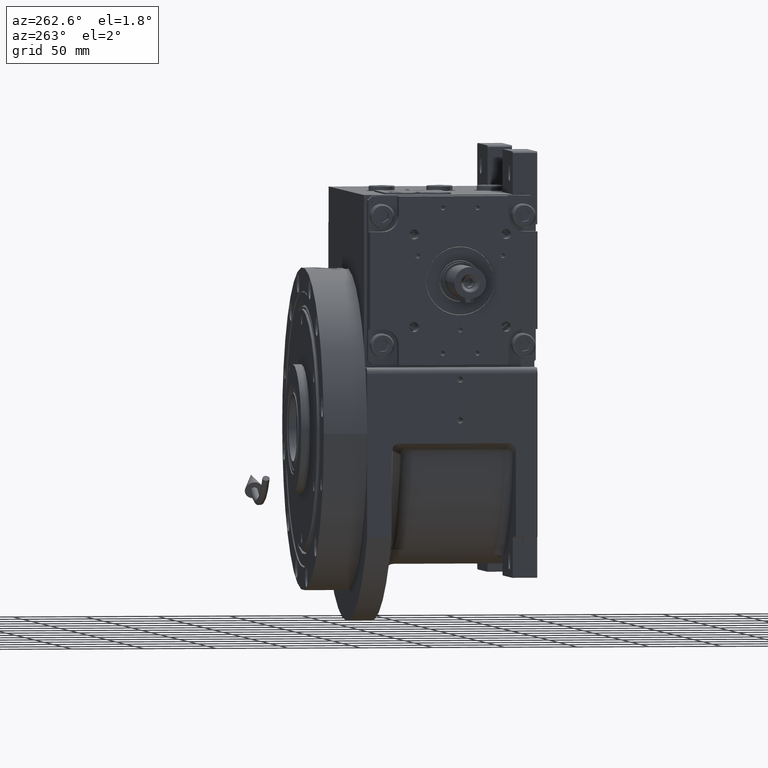
[diagram: clean part render]
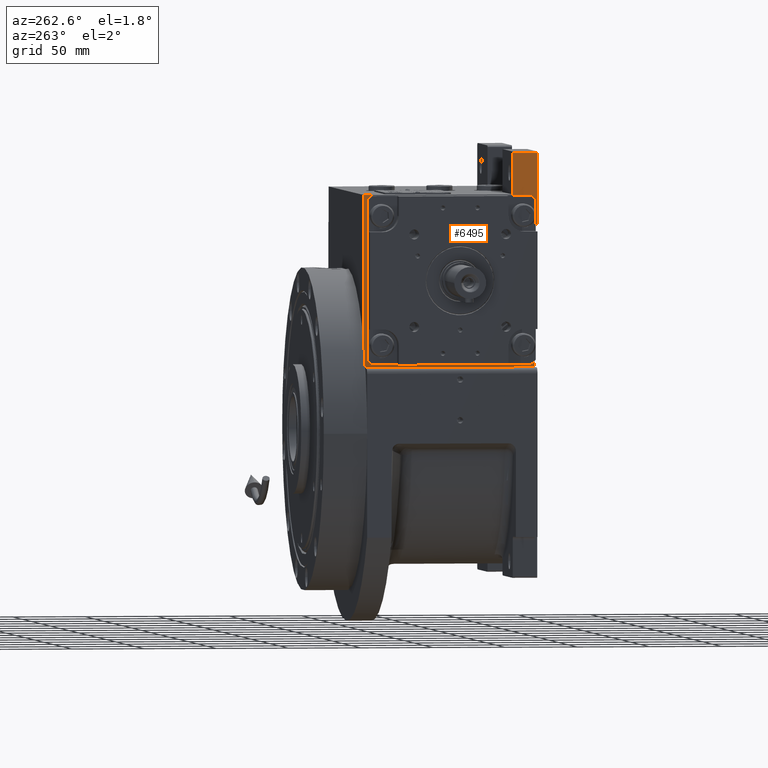
[diagram: same view with one face highlighted and labeled with its STEP entity id]
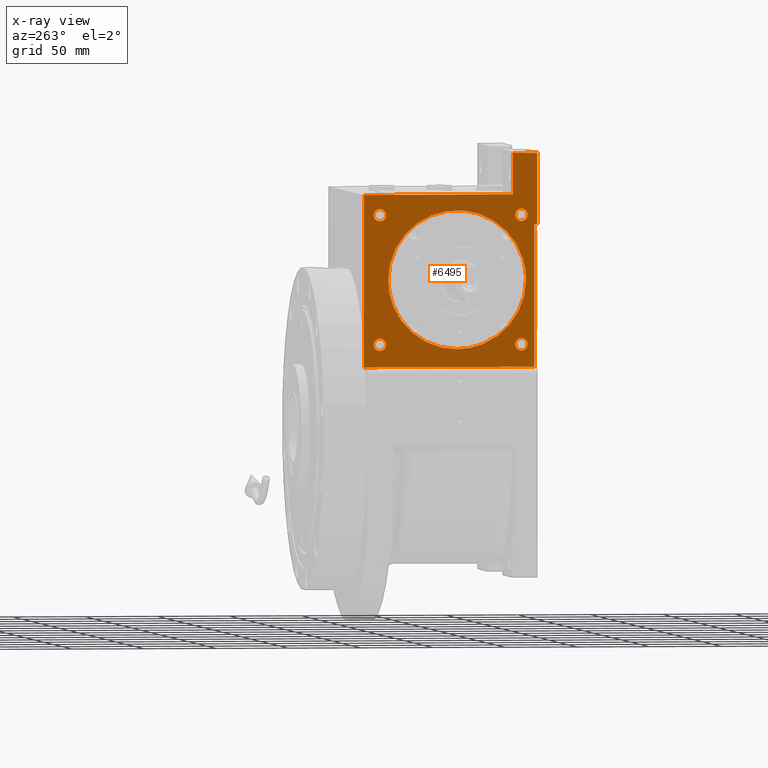
[diagram: x-ray of the same camera — body ghosted, the highlighted face saturated]
A machine part, auxiliary view. The second image highlights one B-rep face of the part: STEP entity #6495.
The next image is the same camera in x-ray: the body ghosted, the highlighted face saturated — about 0% of this face is hidden behind the body in this view.
In plain terms, the highlighted planar face has unit normal (-1, 0, 0).
Its self-contained STEP definition (entity closure, byte-faithful):
#1208 = CARTESIAN_POINT ( 'NONE',  ( -94.50000000000000000, 64.50000000000000000, 45.00000000000000000 ) ) ;
#1776 = ORIENTED_EDGE ( 'NONE', *, *, #22704, .F. ) ;
#1873 = DIRECTION ( 'NONE',  ( 1.000000000000000000, 0.000000000000000000, 0.000000000000000000 ) ) ;
#2412 = FACE_BOUND ( 'NONE', #56578, .T. ) ;
#2658 = CARTESIAN_POINT ( 'NONE',  ( -94.50000000000000000, -44.50000000000000000, 60.50000000000000000 ) ) ;
#2774 = FACE_BOUND ( 'NONE', #51881, .T. ) ;
#2839 = CARTESIAN_POINT ( 'NONE',  ( -94.50000000000000000, -48.75000000000000000, 149.5000000000000000 ) ) ;
#3049 = CARTESIAN_POINT ( 'NONE',  ( -94.50000000000000000, -53.50000000000000000, 143.0000000000000000 ) ) ;
#3229 = CARTESIAN_POINT ( 'NONE',  ( -94.50000000000001421, 46.88961175932070091, 113.9273655160291838 ) ) ;
#3276 = CARTESIAN_POINT ( 'NONE',  ( -94.50000000000000000, -40.25000000000000000, 149.5000000000000000 ) ) ;
#3290 = CARTESIAN_POINT ( 'NONE',  ( -94.50002902716749986, 47.73200051477400763, 104.9999994569417936 ) ) ;
#3461 = VERTEX_POINT ( 'NONE', #16632 ) ;
#3719 = CARTESIAN_POINT ( 'NONE',  ( -94.50000000000001421, 12.38588816551537697, 58.79663575734043945 ) ) ;
#3915 = CARTESIAN_POINT ( 'NONE',  ( -94.50000000000002842, 46.96080401060652321, 113.5451053246913347 ) ) ;
#4244 = CARTESIAN_POINT ( 'NONE',  ( -94.50000000000001421, -35.96695531518849265, 136.5363875231229542 ) ) ;
#4755 = CARTESIAN_POINT ( 'NONE',  ( -94.50000000000000000, 47.61382466066523023, 101.0759257648873586 ) ) ;
#4838 = CIRCLE ( 'NONE', #54854, 4.249999999999996447 ) ;
#4955 = CARTESIAN_POINT ( 'NONE',  ( -94.49999999999997158, -46.73724781633644909, 114.6936290960339164 ) ) ;
#5276 = CARTESIAN_POINT ( 'NONE',  ( -94.50000000000001421, -31.53604245231961301, 69.03277104412369169 ) ) ;
#5436 = EDGE_CURVE ( 'NONE', #6942, #28425, #13821, .T. ) ;
#6495 = ADVANCED_FACE ( 'NONE', ( #45555, #2412, #2774, #60165, #56004, #60518 ), #24329, .T. ) ;
#6578 = CARTESIAN_POINT ( 'NONE',  ( -94.50002902716749986, -47.73200051477400763, 105.0000005430581922 ) ) ;
#6783 = EDGE_CURVE ( 'NONE', #26334, #54615, #32649, .T. ) ;
#6942 = VERTEX_POINT ( 'NONE', #66662 ) ;
#7552 = DIRECTION ( 'NONE',  ( 0.000000000000000000, 1.000000000000000000, 0.000000000000000000 ) ) ;
#7755 = CARTESIAN_POINT ( 'NONE',  ( -94.50000000000001421, -46.65598290147414673, 94.92294484380776964 ) ) ;
#8032 = ORIENTED_EDGE ( 'NONE', *, *, #5436, .T. ) ;
#8121 = CARTESIAN_POINT ( 'NONE',  ( -94.50000000000002842, -46.53084687809913333, 115.6513191135476859 ) ) ;
#8490 = CARTESIAN_POINT ( 'NONE',  ( -94.50000000000001421, 25.21615640584654727, 145.5578584643635622 ) ) ;
#8952 = CARTESIAN_POINT ( 'NONE',  ( -94.49999999999998579, 47.28038559175087840, 98.37212633820108465 ) ) ;
#9083 = CARTESIAN_POINT ( 'NONE',  ( -94.50000000000000000, -55.50000000000000000, 192.0000000000000000 ) ) ;
#9145 = CARTESIAN_POINT ( 'NONE',  ( -94.50000000000001421, 19.71338963104154018, 148.4990686635322845 ) ) ;
#9631 = EDGE_CURVE ( 'NONE', #40561, #45161, #47646, .T. ) ;
#10002 = CARTESIAN_POINT ( 'NONE',  ( -94.50000000000001421, 31.53567655322573415, 69.03251598532041555 ) ) ;
#10161 = CARTESIAN_POINT ( 'NONE',  ( -94.50000000000000000, -16.81798885674087529, 60.30141505839321070 ) ) ;
#10351 = CARTESIAN_POINT ( 'NONE',  ( -94.50000000000001421, 21.16120596561760792, 62.10063998505012961 ) ) ;
#10708 = DIRECTION ( 'NONE',  ( 1.000000000000000000, 0.000000000000000000, 0.000000000000000000 ) ) ;
#11140 = ORIENTED_EDGE ( 'NONE', *, *, #48332, .T. ) ;
#11291 = DIRECTION ( 'NONE',  ( 1.000000000000000000, 0.000000000000000000, 0.000000000000000000 ) ) ;
#11409 = VECTOR ( 'NONE', #11793, 1000.000000000000000 ) ;
#11727 = DIRECTION ( 'NONE',  ( 1.000000000000000000, 0.000000000000000000, 0.000000000000000000 ) ) ;
#11793 = DIRECTION ( 'NONE',  ( 0.000000000000000000, -1.000000000000000000, 0.000000000000000000 ) ) ;
#11921 = AXIS2_PLACEMENT_3D ( 'NONE', #27367, #11727, #21454 ) ;
#11989 = CARTESIAN_POINT ( 'NONE',  ( -94.50000000000000000, -38.50000000000000000, 192.0000000000000000 ) ) ;
#12671 = CARTESIAN_POINT ( 'NONE',  ( -94.50000000000000000, 53.50000000000000000, 149.5000000000000000 ) ) ;
#13348 = CARTESIAN_POINT ( 'NONE',  ( -94.50000000000002842, -44.69767798651884050, 121.8207469609958622 ) ) ;
#13656 = ORIENTED_EDGE ( 'NONE', *, *, #47795, .T. ) ;
#13688 = CARTESIAN_POINT ( 'NONE',  ( -94.50000000000001421, 31.48736192264944833, 140.9078131264519982 ) ) ;
#13821 = CIRCLE ( 'NONE', #14903, 4.250000000000003553 ) ;
#13897 = CARTESIAN_POINT ( 'NONE',  ( -94.50000000000000000, -55.50000000000000000, 192.0000000000000000 ) ) ;
#14374 = CARTESIAN_POINT ( 'NONE',  ( -94.50000000000001421, -40.55872462228555264, 130.2145938872452859 ) ) ;
#14463 = VERTEX_POINT ( 'NONE', #48377 ) ;
#14510 = CARTESIAN_POINT ( 'NONE',  ( -94.50000000000002842, 3.135056079706626253, 57.26791425870772656 ) ) ;
#14677 = CARTESIAN_POINT ( 'NONE',  ( -94.50000000000001421, -2.258709934327462632E-09, 57.26804993220748230 ) ) ;
#14701 = CARTESIAN_POINT ( 'NONE',  ( -94.50000000000001421, 15.34954420606245584, 150.2241626617958161 ) ) ;
#14872 = CARTESIAN_POINT ( 'NONE',  ( -94.49999999999998579, 46.12893470360536696, 92.63460039161822124 ) ) ;
#14903 = AXIS2_PLACEMENT_3D ( 'NONE', #31118, #34961, #57548 ) ;
#15053 = CARTESIAN_POINT ( 'NONE',  ( -94.49999999999998579, -6.231332591788393493, 57.65013464142329269 ) ) ;
#15239 = CIRCLE ( 'NONE', #54105, 4.250000000000003553 ) ;
#15283 = AXIS2_PLACEMENT_3D ( 'NONE', #22449, #54448, #43674 ) ;
#15396 = CARTESIAN_POINT ( 'NONE',  ( -94.50000000000000000, -3.127298981115378407, 57.34440769724163545 ) ) ;
#15733 = CARTESIAN_POINT ( 'NONE',  ( -94.50000000000001421, -15.34956193101807997, 59.77584337431348871 ) ) ;
#15931 = DIRECTION ( 'NONE',  ( 1.000000000000000000, 0.000000000000000000, 0.000000000000000000 ) ) ;
#15977 = CARTESIAN_POINT ( 'NONE',  ( -94.50000000000000000, -53.50000000000000000, 143.0000000000000000 ) ) ;
#16135 = DIRECTION ( 'NONE',  ( 0.000000000000000000, 0.000000000000000000, 1.000000000000000000 ) ) ;
#16632 = CARTESIAN_POINT ( 'NONE',  ( -94.50000000000000000, 57.75000000000000000, 60.50000000000000000 ) ) ;
#16715 = ORIENTED_EDGE ( 'NONE', *, *, #60008, .T. ) ;
#17209 = LINE ( 'NONE', #11989, #20091 ) ;
#18195 = CARTESIAN_POINT ( 'NONE',  ( -94.50000000000000000, -46.77693522067696108, 95.50024996981599656 ) ) ;
#18244 = ORIENTED_EDGE ( 'NONE', *, *, #6783, .T. ) ;
#18281 = CARTESIAN_POINT ( 'NONE',  ( -94.50000000000000000, -53.50000000000000000, 45.00000000000000000 ) ) ;
#18390 = VECTOR ( 'NONE', #16135, 1000.000000000000000 ) ;
#18571 = CARTESIAN_POINT ( 'NONE',  ( -94.49999999999997158, 21.12654275424972283, 147.8309348310009170 ) ) ;
#18681 = VERTEX_POINT ( 'NONE', #59793 ) ;
#18995 = VECTOR ( 'NONE', #46313, 1000.000000000000000 ) ;
#19229 = VERTEX_POINT ( 'NONE', #61933 ) ;
#19237 = CARTESIAN_POINT ( 'NONE',  ( -94.50000000000000000, -15.37029918311709054, 150.2982602239280823 ) ) ;
#19309 = LINE ( 'NONE', #18281, #31688 ) ;
#19903 = CARTESIAN_POINT ( 'NONE',  ( -94.50000000000002842, -44.69773404728655208, 88.17944244239936324 ) ) ;
#19928 = CARTESIAN_POINT ( 'NONE',  ( -94.49999999999998579, 37.94607221249631124, 134.1247242799770447 ) ) ;
#20091 = VECTOR ( 'NONE', #39436, 1000.000000000000000 ) ;
#20246 = CARTESIAN_POINT ( 'NONE',  ( -94.49999999999998579, -1.567527053050980390, 57.26796714655815634 ) ) ;
#20267 = CARTESIAN_POINT ( 'NONE',  ( -94.50000000000000000, -46.77705666671472073, 114.4997119127124563 ) ) ;
#20428 = CARTESIAN_POINT ( 'NONE',  ( -94.50000000000001421, 15.37151117577840864, 59.70224310249308530 ) ) ;
#20606 = CARTESIAN_POINT ( 'NONE',  ( -94.49999999999998579, -42.90070062080025792, 83.84088625643956050 ) ) ;
#20796 = CARTESIAN_POINT ( 'NONE',  ( -94.50000000000001421, -2.258709934327462632E-09, 57.26804993220748230 ) ) ;
#20802 = AXIS2_PLACEMENT_3D ( 'NONE', #48914, #10708, #26666 ) ;
#21454 = DIRECTION ( 'NONE',  ( 0.000000000000000000, 1.000000000000000000, 0.000000000000000000 ) ) ;
#21830 = DIRECTION ( 'NONE',  ( 0.000000000000000000, -1.000000000000000000, 0.000000000000000000 ) ) ;
#22449 = CARTESIAN_POINT ( 'NONE',  ( -94.50000000000000000, -44.50000000000000000, 149.5000000000000000 ) ) ;
#22704 = EDGE_CURVE ( 'NONE', #53458, #54615, #59384, .T. ) ;
#23076 = DIRECTION ( 'NONE',  ( 0.000000000000000000, -1.000000000000000000, 0.000000000000000000 ) ) ;
#23307 = CARTESIAN_POINT ( 'NONE',  ( -94.50000000000000000, -38.50000000000000000, 192.0000000000000000 ) ) ;
#23626 = DIRECTION ( 'NONE',  ( -1.000000000000000000, 0.000000000000000000, 0.000000000000000000 ) ) ;
#24329 = PLANE ( 'NONE',  #53551 ) ;
#24454 = CARTESIAN_POINT ( 'NONE',  ( -94.50000000000001421, -12.38677948155730135, 151.2031855458697294 ) ) ;
#25151 = CARTESIAN_POINT ( 'NONE',  ( -94.50000000000000000, -6.237474129900383524, 152.4265261205430591 ) ) ;
#25203 = LINE ( 'NONE', #29395, #54956 ) ;
#25479 = CARTESIAN_POINT ( 'NONE',  ( -94.50000000000001421, -41.36173870666255681, 128.8753330142440348 ) ) ;
#25801 = CARTESIAN_POINT ( 'NONE',  ( -94.50000000000002842, -35.96738012643699278, 73.46407298709455347 ) ) ;
#26334 = VERTEX_POINT ( 'NONE', #3049 ) ;
#26666 = DIRECTION ( 'NONE',  ( 0.000000000000000000, -1.000000000000000000, 0.000000000000000000 ) ) ;
#26785 = CARTESIAN_POINT ( 'NONE',  ( -94.50000000000000000, 49.25000000000000000, 60.50000000000000000 ) ) ;
#27287 = CIRCLE ( 'NONE', #20802, 4.250000000000003553 ) ;
#27367 = CARTESIAN_POINT ( 'NONE',  ( -94.50000000000000000, 53.50000000000000000, 60.50000000000000000 ) ) ;
#27541 = ORIENTED_EDGE ( 'NONE', *, *, #46637, .T. ) ;
#28425 = VERTEX_POINT ( 'NONE', #35322 ) ;
#28556 = ORIENTED_EDGE ( 'NONE', *, *, #9631, .T. ) ;
#29346 = CARTESIAN_POINT ( 'NONE',  ( -94.50000000000000000, -46.65605839504215879, 115.0771456453047676 ) ) ;
#29395 = CARTESIAN_POINT ( 'NONE',  ( -94.50000000000000000, -38.50000000000000000, 163.5000000000000000 ) ) ;
#29684 = EDGE_CURVE ( 'NONE', #14463, #38990, #4838, .T. ) ;
#29705 = CARTESIAN_POINT ( 'NONE',  ( -94.50000000000002842, -43.49978101591521096, 124.7126624490281870 ) ) ;
#30024 = CARTESIAN_POINT ( 'NONE',  ( -94.50000000000001421, 41.42952868345832229, 128.9111829337024346 ) ) ;
#30613 = LINE ( 'NONE', #37092, #43222 ) ;
#30737 = CARTESIAN_POINT ( 'NONE',  ( -94.49999999999997158, 47.28025494900438019, 111.6275868649310041 ) ) ;
#30912 = VERTEX_POINT ( 'NONE', #49054 ) ;
#31118 = CARTESIAN_POINT ( 'NONE',  ( -94.50000000000000000, -44.50000000000000000, 60.50000000000000000 ) ) ;
#31386 = CARTESIAN_POINT ( 'NONE',  ( -94.50000000000000000, -25.21521626232379987, 64.44151271069083009 ) ) ;
#31574 = CARTESIAN_POINT ( 'NONE',  ( -94.50000000000001421, 46.50853078416483299, 94.15104533994842484 ) ) ;
#31688 = VECTOR ( 'NONE', #66589, 1000.000000000000000 ) ;
#32172 = EDGE_CURVE ( 'NONE', #19229, #18681, #25203, .T. ) ;
#32649 = LINE ( 'NONE', #15977, #11409 ) ;
#33014 = AXIS2_PLACEMENT_3D ( 'NONE', #63909, #15931, #21830 ) ;
#33201 = B_SPLINE_CURVE_WITH_KNOTS ( 'NONE', 3,
 ( #56793, #35261, #40120, #30737, #62009, #3915, #3229, #46026, #66533, #61315, #39779, #30024, #19928, #45682, #34911, #13688, #60977, #56137, #8490, #57148, #18571, #9145, #62335, #14701, #50901, #66868, #67551, #35916, #35577, #25151, #24454, #19237, #46374, #56468, #51933, #51233, #4244, #67215, #14374, #25479, #66200, #29705, #13348, #34557, #55776, #8121, #29346, #4955, #20267, #43799, #47049, #6578 ),
 .UNSPECIFIED., .F., .F.,
 ( 4, 1, 1, 1, 2, 2, 2, 2, 2, 2, 2, 2, 2, 2, 2, 2, 2, 2, 2, 2, 2, 2, 2, 1, 1, 1, 2, 2, 4 ),
 ( 0.000000000000000000, 0.03124999999999807793, 0.04687499999999711342, 0.05468749999999677341, 0.05859374999999659300, 0.06249999999999640565, 0.1249999999999969191, 0.1874999999999974465, 0.2499999999999980016, 0.2812499999999980571, 0.3124999999999981126, 0.3437499999999981126, 0.3749999999999981126, 0.4062499999999981681, 0.4374999999999981681, 0.4999999999999982236, 0.5624999999999982236, 0.6249999999999983347, 0.6874999999999983347, 0.7499999999999983347, 0.8124999999999984457, 0.8437499999999984457, 0.8749999999999983347, 0.9062499999999983347, 0.9218749999999983347, 0.9296874999999983347, 0.9335937499999983347, 0.9374999999999983347, 1.000000000000000000 ),
 .UNSPECIFIED. ) ;
#34260 = VERTEX_POINT ( 'NONE', #23307 ) ;
#34557 = CARTESIAN_POINT ( 'NONE',  ( -94.50000000000000000, -45.48642439442174634, 119.6165669637446598 ) ) ;
#34911 = CARTESIAN_POINT ( 'NONE',  ( -94.50000000000000000, 32.64398465948640649, 139.8592951360120935 ) ) ;
#34961 = DIRECTION ( 'NONE',  ( 1.000000000000000000, 0.000000000000000000, 0.000000000000000000 ) ) ;
#35261 = CARTESIAN_POINT ( 'NONE',  ( -94.50000000000001421, 47.72994232911928947, 106.5771762729989689 ) ) ;
#35322 = CARTESIAN_POINT ( 'NONE',  ( -94.50000000000000000, -40.25000000000000000, 60.50000000000000000 ) ) ;
#35472 = ORIENTED_EDGE ( 'NONE', *, *, #45003, .T. ) ;
#35577 = CARTESIAN_POINT ( 'NONE',  ( -94.50000000000001421, -3.134311815908365606, 152.7320841883768026 ) ) ;
#35726 = CARTESIAN_POINT ( 'NONE',  ( -94.50000000000001421, 29.12398009976643465, 67.05341036395793708 ) ) ;
#35734 = ORIENTED_EDGE ( 'NONE', *, *, #51168, .T. ) ;
#35893 = CARTESIAN_POINT ( 'NONE',  ( -94.50000000000000000, -12.36481462194104175, 58.87040540576688130 ) ) ;
#35916 = CARTESIAN_POINT ( 'NONE',  ( -94.50000000000001421, 3.134264291284964532, 152.7320167775816344 ) ) ;
#36090 = CARTESIAN_POINT ( 'NONE',  ( -94.50000000000001421, 46.88973768573275436, 96.07258978994367737 ) ) ;
#36253 = CARTESIAN_POINT ( 'NONE',  ( -94.49999999999998579, -19.71469672689931230, 61.50147347092535455 ) ) ;
#36433 = CARTESIAN_POINT ( 'NONE',  ( -94.50000000000002842, 23.91317564448813826, 63.57148483192284516 ) ) ;
#37092 = CARTESIAN_POINT ( 'NONE',  ( -94.50000000000000000, -53.50000000000000000, 45.00000000000000000 ) ) ;
#37119 = CARTESIAN_POINT ( 'NONE',  ( -94.50000000000002842, 46.96093206086307958, 96.45480059978120835 ) ) ;
#37653 = ORIENTED_EDGE ( 'NONE', *, *, #62495, .F. ) ;
#38288 = EDGE_CURVE ( 'NONE', #34260, #19229, #17209, .T. ) ;
#38556 = CIRCLE ( 'NONE', #11921, 4.249999999999996447 ) ;
#38571 = EDGE_LOOP ( 'NONE', ( #16715, #8032 ) ) ;
#38577 = ORIENTED_EDGE ( 'NONE', *, *, #32172, .T. ) ;
#38990 = VERTEX_POINT ( 'NONE', #42718 ) ;
#39184 = CARTESIAN_POINT ( 'NONE',  ( -94.50002902716749986, -47.73200051477400763, 105.0000005430581922 ) ) ;
#39436 = DIRECTION ( 'NONE',  ( 0.000000000000000000, 0.000000000000000000, -1.000000000000000000 ) ) ;
#39779 = CARTESIAN_POINT ( 'NONE',  ( -94.50000000000000000, 42.90029353270284673, 126.1600955602706335 ) ) ;
#40120 = CARTESIAN_POINT ( 'NONE',  ( -94.50000000000001421, 47.61371540076724074, 108.9236864794384019 ) ) ;
#40561 = VERTEX_POINT ( 'NONE', #55047 ) ;
#40631 = EDGE_LOOP ( 'NONE', ( #38577, #54309, #37653, #35472, #18244, #1776, #35734, #63949 ) ) ;
#40791 = VERTEX_POINT ( 'NONE', #26785 ) ;
#40956 = CARTESIAN_POINT ( 'NONE',  ( -94.50000000000001421, 45.22350735670155331, 89.64870169961902491 ) ) ;
#41111 = CARTESIAN_POINT ( 'NONE',  ( -94.50000000000001421, -10.84978547974994889, 58.49107406006569221 ) ) ;
#41275 = EDGE_LOOP ( 'NONE', ( #62713, #28556, #13656 ) ) ;
#41834 = CARTESIAN_POINT ( 'NONE',  ( -94.49999999999997158, -46.53080366400386936, 94.34883752729956541 ) ) ;
#41859 = CIRCLE ( 'NONE', #33014, 4.249999999999996447 ) ;
#42340 = CARTESIAN_POINT ( 'NONE',  ( -94.50000000000000000, 44.69814215620332476, 88.18037311426786573 ) ) ;
#42718 = CARTESIAN_POINT ( 'NONE',  ( -94.50000000000000000, 49.25000000000000000, 149.5000000000000000 ) ) ;
#43222 = VECTOR ( 'NONE', #45895, 1000.000000000000000 ) ;
#43674 = DIRECTION ( 'NONE',  ( 0.000000000000000000, 1.000000000000000000, 0.000000000000000000 ) ) ;
#43799 = CARTESIAN_POINT ( 'NONE',  ( -94.50000000000000000, -47.42226082726092073, 111.2577996452957052 ) ) ;
#43928 = ORIENTED_EDGE ( 'NONE', *, *, #68028, .T. ) ;
#45003 = EDGE_CURVE ( 'NONE', #30912, #26334, #19309, .T. ) ;
#45161 = VERTEX_POINT ( 'NONE', #3290 ) ;
#45260 = CIRCLE ( 'NONE', #15283, 4.250000000000003553 ) ;
#45555 = FACE_BOUND ( 'NONE', #38571, .T. ) ;
#45618 = LINE ( 'NONE', #9083, #18995 ) ;
#45680 = EDGE_CURVE ( 'NONE', #54003, #40561, #53778, .T. ) ;
#45682 = CARTESIAN_POINT ( 'NONE',  ( -94.50000000000001421, 35.96713935609270152, 136.5361688740087800 ) ) ;
#45895 = DIRECTION ( 'NONE',  ( 0.000000000000000000, 1.000000000000000000, 0.000000000000000000 ) ) ;
#46000 = CARTESIAN_POINT ( 'NONE',  ( -94.50002902716749986, -47.73200051477400763, 105.0000005430581922 ) ) ;
#46026 = CARTESIAN_POINT ( 'NONE',  ( -94.50000000000000000, 46.85318337928507759, 114.1165587201162310 ) ) ;
#46189 = CARTESIAN_POINT ( 'NONE',  ( -94.50000000000000000, 42.89989737565533545, 83.83912320250598782 ) ) ;
#46313 = DIRECTION ( 'NONE',  ( 0.000000000000000000, 1.000000000000000000, 0.000000000000000000 ) ) ;
#46374 = CARTESIAN_POINT ( 'NONE',  ( -94.49999999999998579, -21.16245087386180046, 147.8988430531515803 ) ) ;
#46423 = DIRECTION ( 'NONE',  ( 0.000000000000000000, 1.000000000000000000, 0.000000000000000000 ) ) ;
#46637 = EDGE_CURVE ( 'NONE', #66098, #61610, #27287, .T. ) ;
#46736 = EDGE_CURVE ( 'NONE', #3461, #40791, #38556, .T. ) ;
#46862 = CARTESIAN_POINT ( 'NONE',  ( -94.50000000000002842, 46.85331908279030699, 95.88347845944194603 ) ) ;
#47049 = CARTESIAN_POINT ( 'NONE',  ( -94.50000000000001421, -47.72794114530989873, 108.1547961177865460 ) ) ;
#47646 = B_SPLINE_CURVE_WITH_KNOTS ( 'NONE', 3,
 ( #20796, #14510, #68041, #3719, #20428, #10351, #36433, #35726, #10002, #62868, #52433, #67372, #46189, #42340, #40956, #14872, #31574, #46862, #36090, #37119, #51384, #8952, #4755, #62151, #57318 ),
 .UNSPECIFIED., .F., .F.,
 ( 4, 2, 2, 2, 2, 2, 2, 2, 2, 2, 1, 1, 1, 4 ),
 ( 0.4999998420776699537, 0.5624998618179612997, 0.6249998815582527012, 0.6874999012985439917, 0.7499999210388352822, 0.8124999407791266837, 0.8749999605194178631, 0.9062499703895636749, 0.9374999802597092646, 0.9414062314934774633, 0.9453124827272456621, 0.9531249851947818374, 0.9687499901298546323, 1.000000000000000000 ),
 .UNSPECIFIED. ) ;
#47706 = CARTESIAN_POINT ( 'NONE',  ( -94.49999999999998579, -45.48651289477462001, 90.38379672104898077 ) ) ;
#47709 = EDGE_CURVE ( 'NONE', #38990, #14463, #54055, .T. ) ;
#47795 = EDGE_CURVE ( 'NONE', #45161, #54003, #33201, .T. ) ;
#48332 = EDGE_CURVE ( 'NONE', #40791, #3461, #41859, .T. ) ;
#48377 = CARTESIAN_POINT ( 'NONE',  ( -94.50000000000000000, 57.75000000000000000, 149.5000000000000000 ) ) ;
#48914 = CARTESIAN_POINT ( 'NONE',  ( -94.50000000000000000, -44.50000000000000000, 149.5000000000000000 ) ) ;
#48954 = CARTESIAN_POINT ( 'NONE',  ( -94.50000000000000000, -55.50000000000000000, 192.0000000000000000 ) ) ;
#49054 = CARTESIAN_POINT ( 'NONE',  ( -94.50000000000000000, -53.50000000000000000, 45.00000000000000000 ) ) ;
#50901 = CARTESIAN_POINT ( 'NONE',  ( -94.49999999999997158, 12.36479558217645547, 151.1295997110066196 ) ) ;
#51103 = DIRECTION ( 'NONE',  ( 0.000000000000000000, 0.000000000000000000, 1.000000000000000000 ) ) ;
#51168 = EDGE_CURVE ( 'NONE', #53458, #34260, #45618, .T. ) ;
#51233 = CARTESIAN_POINT ( 'NONE',  ( -94.50000000000000000, -31.53647471546850056, 140.9666869774604265 ) ) ;
#51384 = CARTESIAN_POINT ( 'NONE',  ( -94.50000000000000000, 47.06418959019430304, 97.02872375220505319 ) ) ;
#51881 = EDGE_LOOP ( 'NONE', ( #66010, #11140 ) ) ;
#51909 = CARTESIAN_POINT ( 'NONE',  ( -94.50000000000001421, -23.87729410758817750, 63.63941067344601521 ) ) ;
#51933 = CARTESIAN_POINT ( 'NONE',  ( -94.49999999999998579, -29.12464454500050692, 142.9461444836838382 ) ) ;
#52433 = CARTESIAN_POINT ( 'NONE',  ( -94.50000000000000000, 37.94565903608639701, 75.87481233902093436 ) ) ;
#53315 = LINE ( 'NONE', #59563, #18390 ) ;
#53325 = CARTESIAN_POINT ( 'NONE',  ( -94.50000000000000000, -55.50000000000000000, 143.0000000000000000 ) ) ;
#53458 = VERTEX_POINT ( 'NONE', #13897 ) ;
#53551 = AXIS2_PLACEMENT_3D ( 'NONE', #60855, #23626, #51103 ) ;
#53713 = DIRECTION ( 'NONE',  ( 0.000000000000000000, 1.000000000000000000, 0.000000000000000000 ) ) ;
#53778 = B_SPLINE_CURVE_WITH_KNOTS ( 'NONE', 3,
 ( #46000, #61992, #65812, #18195, #55412, #7755, #41834, #57808, #47706, #19903, #20606, #56768, #57478, #25801, #5276, #68567, #31386, #51909, #62310, #36253, #10161, #15733, #35893, #41111, #67858, #15053, #15396, #20246, #14677 ),
 .UNSPECIFIED., .F., .F.,
 ( 4, 2, 2, 1, 1, 1, 2, 2, 2, 2, 2, 2, 2, 2, 2, 4 ),
 ( 0.000000000000000000, 0.06249998025971136711, 0.06640622902594324473, 0.07031247779217512928, 0.07812497532463884287, 0.09374997038956603412, 0.1249999605194201530, 0.1874999407791283768, 0.2499999210388366422, 0.3124999012985448799, 0.3437498914283990681, 0.3749998815582532563, 0.4062498716881074445, 0.4374998618179616328, 0.4687498519478158210, 0.4999998420776699537 ),
 .UNSPECIFIED. ) ;
#54003 = VERTEX_POINT ( 'NONE', #39184 ) ;
#54055 = CIRCLE ( 'NONE', #60692, 4.249999999999996447 ) ;
#54105 = AXIS2_PLACEMENT_3D ( 'NONE', #2658, #66313, #7552 ) ;
#54309 = ORIENTED_EDGE ( 'NONE', *, *, #65866, .F. ) ;
#54448 = DIRECTION ( 'NONE',  ( 1.000000000000000000, 0.000000000000000000, 0.000000000000000000 ) ) ;
#54615 = VERTEX_POINT ( 'NONE', #53325 ) ;
#54854 = AXIS2_PLACEMENT_3D ( 'NONE', #58922, #11291, #53713 ) ;
#54956 = VECTOR ( 'NONE', #46423, 1000.000000000000000 ) ;
#55047 = CARTESIAN_POINT ( 'NONE',  ( -94.50000000000001421, -2.258709934327462632E-09, 57.26804993220748230 ) ) ;
#55412 = CARTESIAN_POINT ( 'NONE',  ( -94.50000000000001421, -46.73714952091775388, 95.30641380868136991 ) ) ;
#55776 = CARTESIAN_POINT ( 'NONE',  ( -94.49999999999998579, -46.21469497688788408, 116.9833477164711866 ) ) ;
#56004 = FACE_BOUND ( 'NONE', #41275, .T. ) ;
#56137 = CARTESIAN_POINT ( 'NONE',  ( -94.50000000000001421, 27.82092247986868472, 143.8172410222030635 ) ) ;
#56468 = CARTESIAN_POINT ( 'NONE',  ( -94.50000000000000000, -23.91253588631538207, 146.4289438242230119 ) ) ;
#56578 = EDGE_LOOP ( 'NONE', ( #43928, #27541 ) ) ;
#56768 = CARTESIAN_POINT ( 'NONE',  ( -94.49999999999998579, -41.42999069093856690, 81.08950957549079419 ) ) ;
#56793 = CARTESIAN_POINT ( 'NONE',  ( -94.50002902716749986, 47.73200051477400763, 104.9999994569417936 ) ) ;
#57148 = CARTESIAN_POINT ( 'NONE',  ( -94.50000000000001421, 23.87728046072275134, 146.3605972261231045 ) ) ;
#57318 = CARTESIAN_POINT ( 'NONE',  ( -94.50002902716749986, 47.73200051477400763, 104.9999994569417936 ) ) ;
#57478 = CARTESIAN_POINT ( 'NONE',  ( -94.50000000000001421, -37.94562010969927002, 75.87459803475135800 ) ) ;
#57548 = DIRECTION ( 'NONE',  ( 0.000000000000000000, -1.000000000000000000, 0.000000000000000000 ) ) ;
#57808 = CARTESIAN_POINT ( 'NONE',  ( -94.49999999999998579, -46.21471361843936165, 93.01692670439571486 ) ) ;
#58922 = CARTESIAN_POINT ( 'NONE',  ( -94.50000000000000000, 53.50000000000000000, 149.5000000000000000 ) ) ;
#59319 = VERTEX_POINT ( 'NONE', #1208 ) ;
#59384 = LINE ( 'NONE', #48954, #63100 ) ;
#59563 = CARTESIAN_POINT ( 'NONE',  ( -94.50000000000000000, 64.50000000000000000, 45.00000000000000000 ) ) ;
#59793 = CARTESIAN_POINT ( 'NONE',  ( -94.50000000000000000, 64.50000000000000000, 163.5000000000000000 ) ) ;
#60008 = EDGE_CURVE ( 'NONE', #28425, #6942, #15239, .T. ) ;
#60165 = FACE_BOUND ( 'NONE', #68022, .T. ) ;
#60518 = FACE_OUTER_BOUND ( 'NONE', #40631, .T. ) ;
#60692 = AXIS2_PLACEMENT_3D ( 'NONE', #12671, #1873, #23076 ) ;
#60855 = CARTESIAN_POINT ( 'NONE',  ( -94.50000000000000000, -53.50000000000000000, 45.00000000000000000 ) ) ;
#60977 = CARTESIAN_POINT ( 'NONE',  ( -94.49999999999998579, 29.07630743970580411, 142.8864675802094553 ) ) ;
#61315 = CARTESIAN_POINT ( 'NONE',  ( -94.49999999999997158, 45.29714773687654628, 120.3734013080521521 ) ) ;
#61610 = VERTEX_POINT ( 'NONE', #3276 ) ;
#61933 = CARTESIAN_POINT ( 'NONE',  ( -94.50000000000000000, -38.50000000000000000, 163.5000000000000000 ) ) ;
#61992 = CARTESIAN_POINT ( 'NONE',  ( -94.49999999999997158, -47.72783385200126105, 101.8456484501679284 ) ) ;
#62009 = CARTESIAN_POINT ( 'NONE',  ( -94.50000000000001421, 47.06405913095156990, 112.9711133438389652 ) ) ;
#62151 = CARTESIAN_POINT ( 'NONE',  ( -94.50000000000001421, 47.72999597539401151, 103.4226011386657405 ) ) ;
#62310 = CARTESIAN_POINT ( 'NONE',  ( -94.50000000000000000, -21.12655777706878624, 62.16907259393592966 ) ) ;
#62335 = CARTESIAN_POINT ( 'NONE',  ( -94.50000000000000000, 16.81926301583547456, 149.6980564523008752 ) ) ;
#62445 = ORIENTED_EDGE ( 'NONE', *, *, #29684, .T. ) ;
#62495 = EDGE_CURVE ( 'NONE', #30912, #59319, #30613, .T. ) ;
#62713 = ORIENTED_EDGE ( 'NONE', *, *, #45680, .T. ) ;
#62868 = CARTESIAN_POINT ( 'NONE',  ( -94.50000000000001421, 35.96773667932816210, 73.46439271668405979 ) ) ;
#63100 = VECTOR ( 'NONE', #64267, 1000.000000000000000 ) ;
#63365 = ORIENTED_EDGE ( 'NONE', *, *, #47709, .T. ) ;
#63909 = CARTESIAN_POINT ( 'NONE',  ( -94.50000000000000000, 53.50000000000000000, 60.50000000000000000 ) ) ;
#63949 = ORIENTED_EDGE ( 'NONE', *, *, #38288, .T. ) ;
#64267 = DIRECTION ( 'NONE',  ( 0.000000000000000000, 0.000000000000000000, -1.000000000000000000 ) ) ;
#65812 = CARTESIAN_POINT ( 'NONE',  ( -94.50000000000000000, -47.42211252508448638, 98.74264140951244428 ) ) ;
#65866 = EDGE_CURVE ( 'NONE', #59319, #18681, #53315, .T. ) ;
#66010 = ORIENTED_EDGE ( 'NONE', *, *, #46736, .T. ) ;
#66098 = VERTEX_POINT ( 'NONE', #2839 ) ;
#66200 = CARTESIAN_POINT ( 'NONE',  ( -94.50000000000002842, -42.83203386314414018, 126.1249298918910000 ) ) ;
#66313 = DIRECTION ( 'NONE',  ( 1.000000000000000000, 0.000000000000000000, 0.000000000000000000 ) ) ;
#66533 = CARTESIAN_POINT ( 'NONE',  ( -94.50000000000002842, 46.20213220610940397, 117.3884687080040123 ) ) ;
#66589 = DIRECTION ( 'NONE',  ( 0.000000000000000000, 0.000000000000000000, 1.000000000000000000 ) ) ;
#66662 = CARTESIAN_POINT ( 'NONE',  ( -94.50000000000000000, -48.75000000000000000, 60.50000000000000000 ) ) ;
#66868 = CARTESIAN_POINT ( 'NONE',  ( -94.50000000000001421, 10.84858756578779371, 151.5091649698962328 ) ) ;
#67215 = CARTESIAN_POINT ( 'NONE',  ( -94.50000000000001421, -37.94608285074581744, 134.1245544417230917 ) ) ;
#67372 = CARTESIAN_POINT ( 'NONE',  ( -94.50000000000000000, 41.43001912281409460, 81.08934469400067258 ) ) ;
#67551 = CARTESIAN_POINT ( 'NONE',  ( -94.49999999999994316, 6.239066223765900254, 152.4262911768545621 ) ) ;
#67858 = CARTESIAN_POINT ( 'NONE',  ( -94.49999999999998579, -7.774416220062631666, 57.87918664580757167 ) ) ;
#68022 = EDGE_LOOP ( 'NONE', ( #62445, #63365 ) ) ;
#68028 = EDGE_CURVE ( 'NONE', #61610, #66098, #45260, .T. ) ;
#68041 = CARTESIAN_POINT ( 'NONE',  ( -94.50000000000000000, 6.238324670779033632, 57.57364446445976824 ) ) ;
#68567 = CARTESIAN_POINT ( 'NONE',  ( -94.50000000000000000, -29.12522285258220833, 67.05435010629298631 ) ) ;